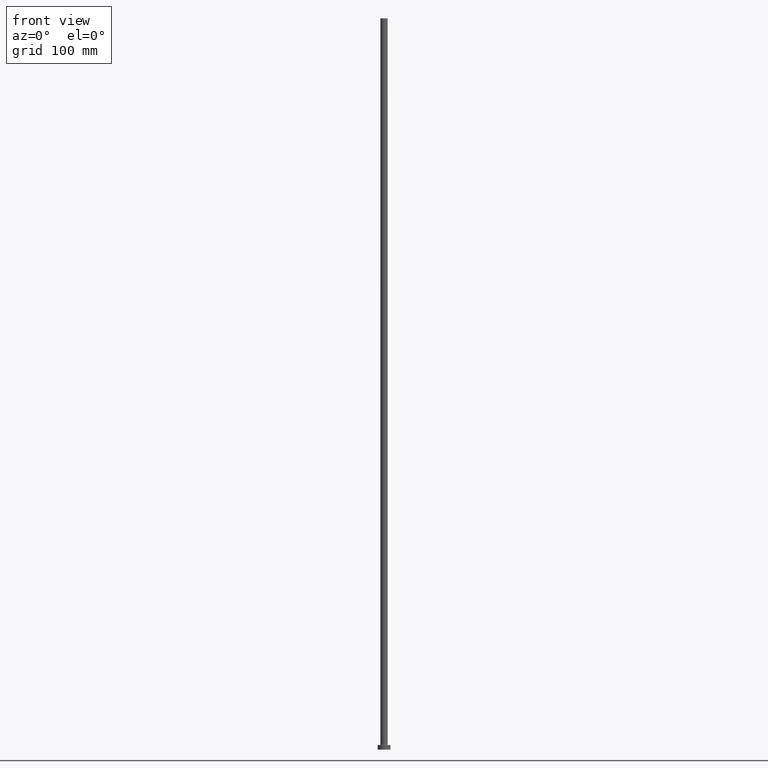
[diagram: clean part render]
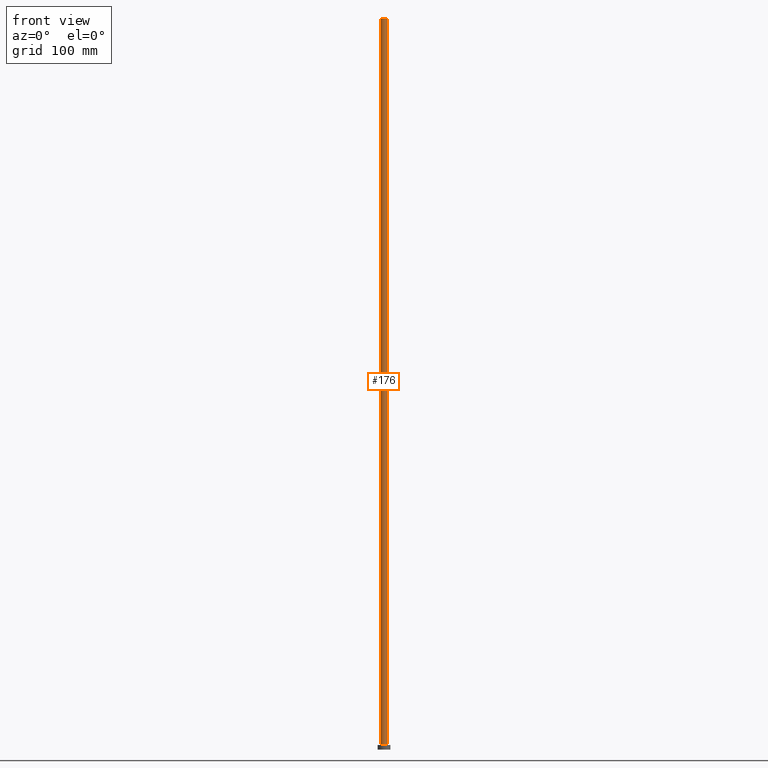
[diagram: same view with one face highlighted and labeled with its STEP entity id]
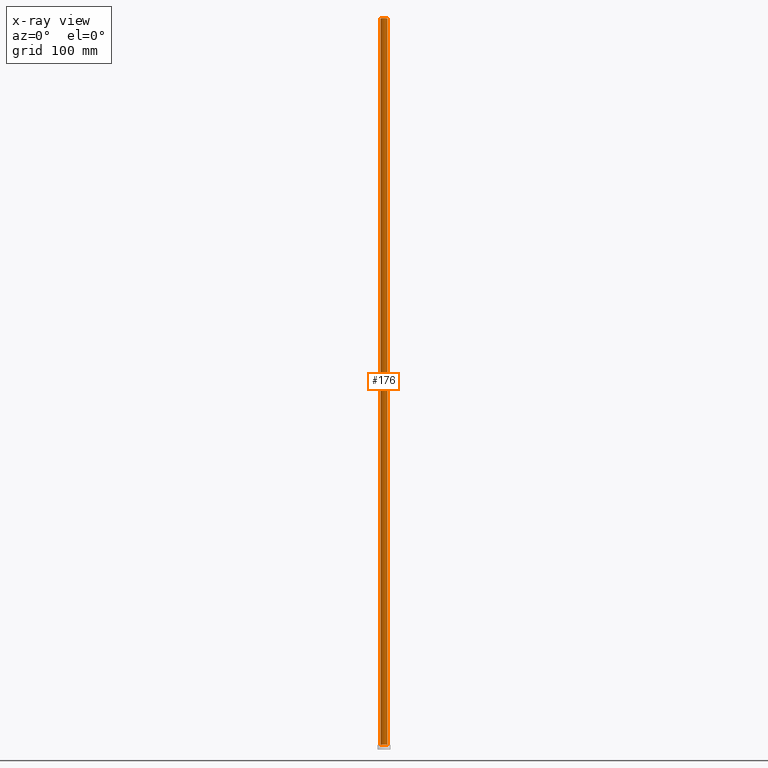
[diagram: x-ray of the same camera — body ghosted, the highlighted face saturated]
A machine part, front view. The second image highlights one B-rep face of the part: STEP entity #176.
The next image is the same camera in x-ray: the body ghosted, the highlighted face saturated — about 0% of this face is hidden behind the body in this view.
In plain terms, the highlighted cylindrical surface (edge-blend (fillet) strip) has radius 4 mm, axis along (-0, -0, -1).
Its self-contained STEP definition (entity closure, byte-faithful):
#11 = CARTESIAN_POINT ( 'NONE',  ( 0.000000000000000000, 0.000000000000000000, 800.0000000000000000 ) ) ;
#15 = VECTOR ( 'NONE', #449, 1000.000000000000000 ) ;
#23 = DIRECTION ( 'NONE',  ( 0.000000000000000000, 0.000000000000000000, 1.000000000000000000 ) ) ;
#32 = CIRCLE ( 'NONE', #199, 4.000000000000000000 ) ;
#33 = AXIS2_PLACEMENT_3D ( 'NONE', #439, #23, #366 ) ;
#36 = CARTESIAN_POINT ( 'NONE',  ( 4.000000000000000000, 4.898587196589412829E-16, 5.499999999999949374 ) ) ;
#93 = EDGE_CURVE ( 'NONE', #148, #216, #429, .T. ) ;
#97 = CARTESIAN_POINT ( 'NONE',  ( -4.000000000000000000, 0.000000000000000000, 800.0000000000000000 ) ) ;
#120 = DIRECTION ( 'NONE',  ( -0.000000000000000000, -0.000000000000000000, -1.000000000000000000 ) ) ;
#144 = VECTOR ( 'NONE', #260, 1000.000000000000000 ) ;
#148 = VERTEX_POINT ( 'NONE', #165 ) ;
#165 = CARTESIAN_POINT ( 'NONE',  ( -4.000000000000000000, 0.000000000000000000, 5.499999999999949374 ) ) ;
#171 = ORIENTED_EDGE ( 'NONE', *, *, #93, .T. ) ;
#176 = ADVANCED_FACE ( 'NONE', ( #402 ), #334, .T. ) ;
#185 = VERTEX_POINT ( 'NONE', #275 ) ;
#199 = AXIS2_PLACEMENT_3D ( 'NONE', #11, #217, #355 ) ;
#201 = LINE ( 'NONE', #97, #15 ) ;
#216 = VERTEX_POINT ( 'NONE', #36 ) ;
#217 = DIRECTION ( 'NONE',  ( 0.000000000000000000, 0.000000000000000000, 1.000000000000000000 ) ) ;
#225 = EDGE_CURVE ( 'NONE', #185, #148, #201, .T. ) ;
#248 = LINE ( 'NONE', #322, #144 ) ;
#251 = VERTEX_POINT ( 'NONE', #294 ) ;
#260 = DIRECTION ( 'NONE',  ( -0.000000000000000000, -0.000000000000000000, -1.000000000000000000 ) ) ;
#275 = CARTESIAN_POINT ( 'NONE',  ( -4.000000000000000000, 0.000000000000000000, 800.0000000000000000 ) ) ;
#293 = ORIENTED_EDGE ( 'NONE', *, *, #225, .T. ) ;
#294 = CARTESIAN_POINT ( 'NONE',  ( 4.000000000000000000, 4.898587196589412829E-16, 800.0000000000000000 ) ) ;
#317 = EDGE_CURVE ( 'NONE', #251, #216, #248, .T. ) ;
#322 = CARTESIAN_POINT ( 'NONE',  ( 4.000000000000000000, 4.898587196589412829E-16, 800.0000000000000000 ) ) ;
#334 = CYLINDRICAL_SURFACE ( 'NONE', #363, 4.000000000000000000 ) ;
#355 = DIRECTION ( 'NONE',  ( 1.000000000000000000, 0.000000000000000000, 0.000000000000000000 ) ) ;
#363 = AXIS2_PLACEMENT_3D ( 'NONE', #443, #120, #369 ) ;
#366 = DIRECTION ( 'NONE',  ( 1.000000000000000000, 0.000000000000000000, 0.000000000000000000 ) ) ;
#369 = DIRECTION ( 'NONE',  ( -1.000000000000000000, 0.000000000000000000, 0.000000000000000000 ) ) ;
#375 = ORIENTED_EDGE ( 'NONE', *, *, #317, .F. ) ;
#398 = EDGE_CURVE ( 'NONE', #185, #251, #32, .T. ) ;
#402 = FACE_OUTER_BOUND ( 'NONE', #444, .T. ) ;
#414 = ORIENTED_EDGE ( 'NONE', *, *, #398, .F. ) ;
#429 = CIRCLE ( 'NONE', #33, 4.000000000000000000 ) ;
#439 = CARTESIAN_POINT ( 'NONE',  ( 0.000000000000000000, 0.000000000000000000, 5.499999999999949374 ) ) ;
#443 = CARTESIAN_POINT ( 'NONE',  ( 0.000000000000000000, 0.000000000000000000, 800.0000000000000000 ) ) ;
#444 = EDGE_LOOP ( 'NONE', ( #375, #414, #293, #171 ) ) ;
#449 = DIRECTION ( 'NONE',  ( -0.000000000000000000, -0.000000000000000000, -1.000000000000000000 ) ) ;